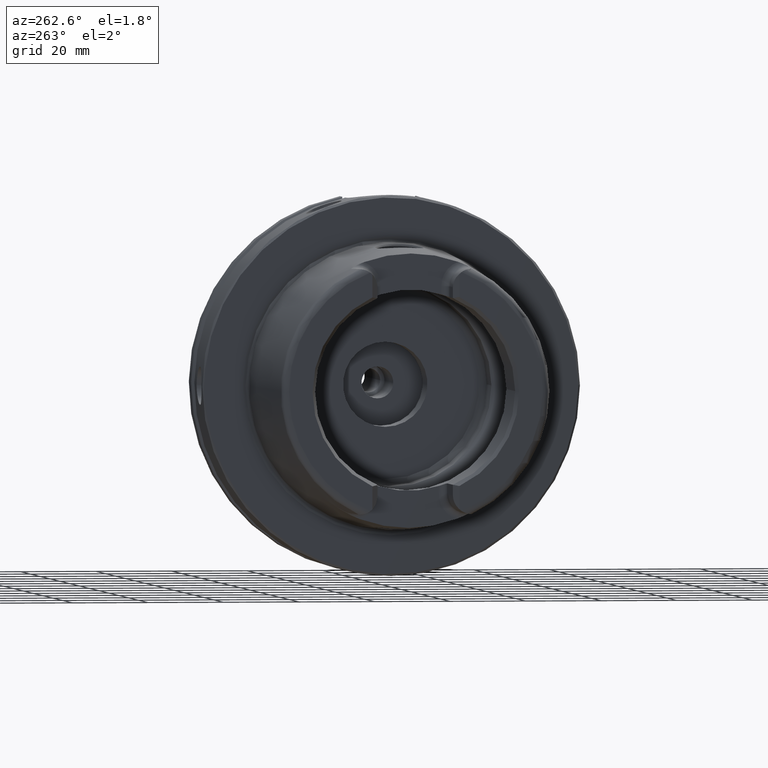
[diagram: clean part render]
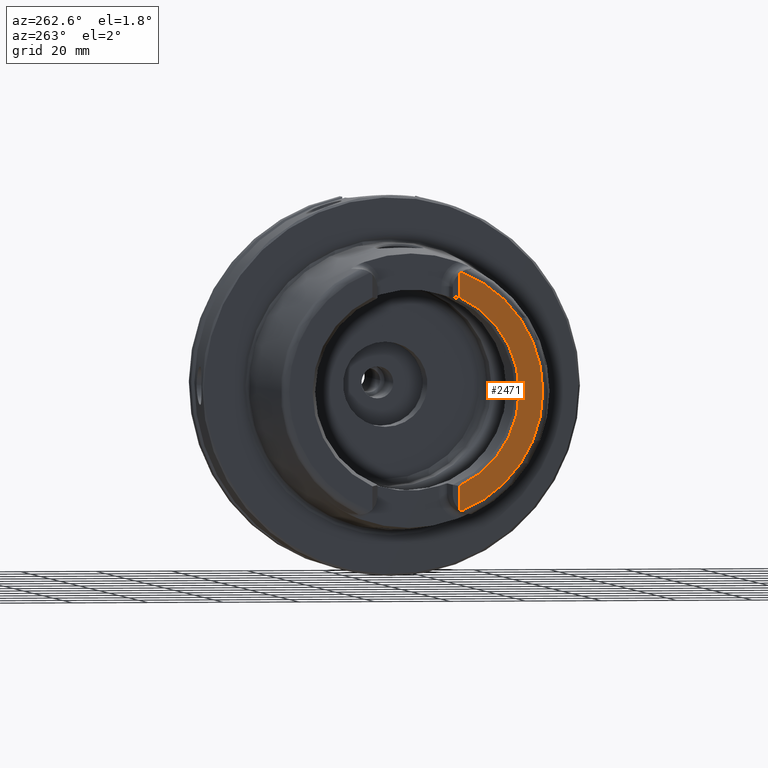
[diagram: same view with one face highlighted and labeled with its STEP entity id]
A machine part, auxiliary view. The second image highlights one B-rep face of the part: STEP entity #2471.
In plain terms, the highlighted planar face has unit normal (-1, 0, 0).
Its self-contained STEP definition (entity closure, byte-faithful):
#84=PLANE('',#2684);
#162=CIRCLE('',#2680,27.3660254037844);
#165=CIRCLE('',#2685,4.88);
#166=CIRCLE('',#2686,33.6001839277785);
#167=CIRCLE('',#2687,4.88);
#457=FACE_OUTER_BOUND('',#599,.T.);
#599=EDGE_LOOP('',(#1860,#1861,#1862,#1863,#1864,#1865));
#820=LINE('',#4198,#940);
#822=LINE('',#4217,#942);
#940=VECTOR('',#3097,10.);
#942=VECTOR('',#3119,10.);
#1117=VERTEX_POINT('',#4195);
#1118=VERTEX_POINT('',#4197);
#1120=VERTEX_POINT('',#4203);
#1123=VERTEX_POINT('',#4211);
#1124=VERTEX_POINT('',#4213);
#1125=VERTEX_POINT('',#4215);
#1392=EDGE_CURVE('',#1117,#1118,#820,.T.);
#1395=EDGE_CURVE('',#1118,#1120,#162,.T.);
#1399=EDGE_CURVE('',#1117,#1123,#165,.T.);
#1400=EDGE_CURVE('',#1124,#1123,#166,.T.);
#1401=EDGE_CURVE('',#1124,#1125,#167,.T.);
#1402=EDGE_CURVE('',#1120,#1125,#822,.T.);
#1860=ORIENTED_EDGE('',*,*,#1392,.F.);
#1861=ORIENTED_EDGE('',*,*,#1399,.T.);
#1862=ORIENTED_EDGE('',*,*,#1400,.F.);
#1863=ORIENTED_EDGE('',*,*,#1401,.T.);
#1864=ORIENTED_EDGE('',*,*,#1402,.F.);
#1865=ORIENTED_EDGE('',*,*,#1395,.F.);
#2471=ADVANCED_FACE('',(#457),#84,.T.);
#2680=AXIS2_PLACEMENT_3D('',#4204,#3103,#3104);
#2684=AXIS2_PLACEMENT_3D('',#4210,#3111,#3112);
#2685=AXIS2_PLACEMENT_3D('',#4212,#3113,#3114);
#2686=AXIS2_PLACEMENT_3D('',#4214,#3115,#3116);
#2687=AXIS2_PLACEMENT_3D('',#4216,#3117,#3118);
#3097=DIRECTION('',(0.,0.,1.));
#3103=DIRECTION('center_axis',(-1.,0.,0.));
#3104=DIRECTION('ref_axis',(0.,-1.,0.));
#3111=DIRECTION('center_axis',(-1.,0.,0.));
#3112=DIRECTION('ref_axis',(0.,0.,1.));
#3113=DIRECTION('center_axis',(-1.,0.,0.));
#3114=DIRECTION('ref_axis',(0.,-1.,0.));
#3115=DIRECTION('center_axis',(1.,0.,0.));
#3116=DIRECTION('ref_axis',(0.,0.,-1.));
#3117=DIRECTION('center_axis',(-1.,0.,0.));
#3118=DIRECTION('ref_axis',(0.,0.477884921181369,-0.878422450821629));
#3119=DIRECTION('',(0.,0.,1.));
#4195=CARTESIAN_POINT('',(-50.,-11.51,-30.8899431813596));
#4197=CARTESIAN_POINT('',(-50.,-11.51,-24.8277918148307));
#4198=CARTESIAN_POINT('',(-50.,-11.51,-13.685));
#4203=CARTESIAN_POINT('',(-50.,-11.51,24.8277918148307));
#4204=CARTESIAN_POINT('Origin',(-50.,0.,0.));
#4210=CARTESIAN_POINT('Origin',(-50.,33.6001839277785,0.));
#4211=CARTESIAN_POINT('',(-50.,-12.0743049948301,-31.355757348091));
#4212=CARTESIAN_POINT('Origin',(-50.,-14.89,-27.37));
#4213=CARTESIAN_POINT('',(-50.,-12.0743049948301,31.355757348091));
#4214=CARTESIAN_POINT('Origin',(-50.,0.,0.));
#4215=CARTESIAN_POINT('',(-50.,-11.51,30.8899431813596));
#4216=CARTESIAN_POINT('Origin',(-50.,-14.89,27.37));
#4217=CARTESIAN_POINT('',(-50.,-11.51,9.));